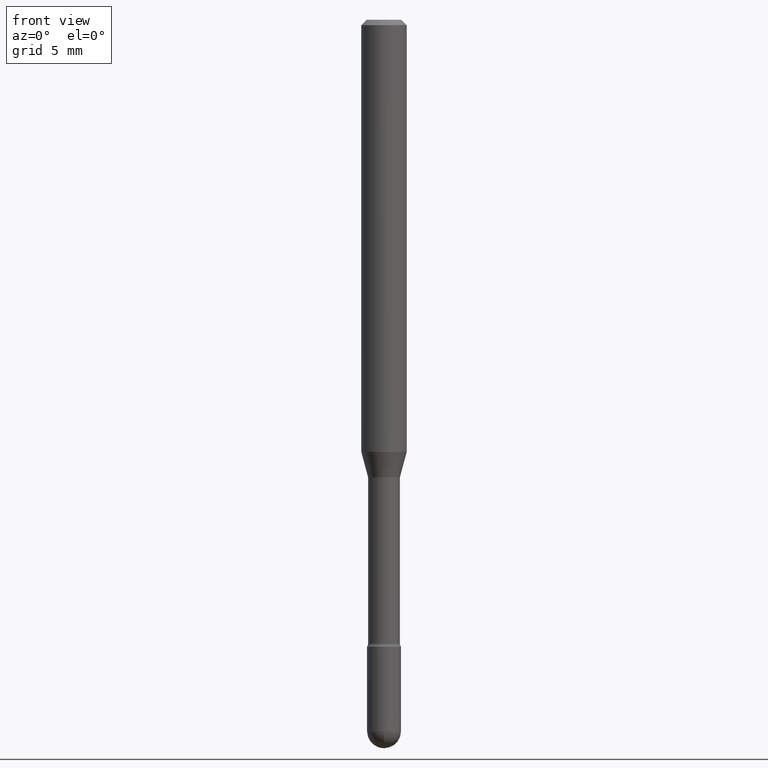
[diagram: clean part render]
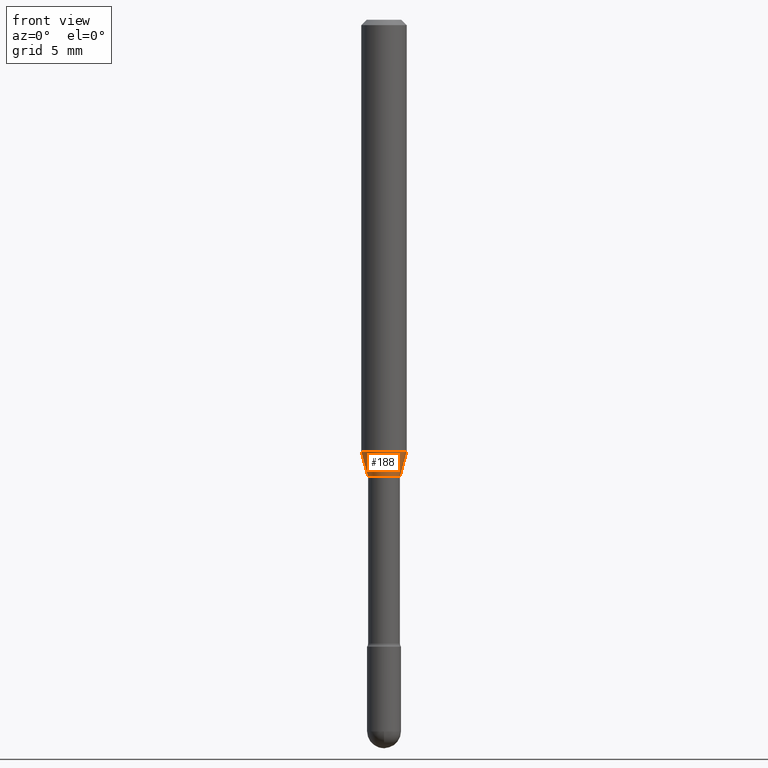
[diagram: same view with one face highlighted and labeled with its STEP entity id]
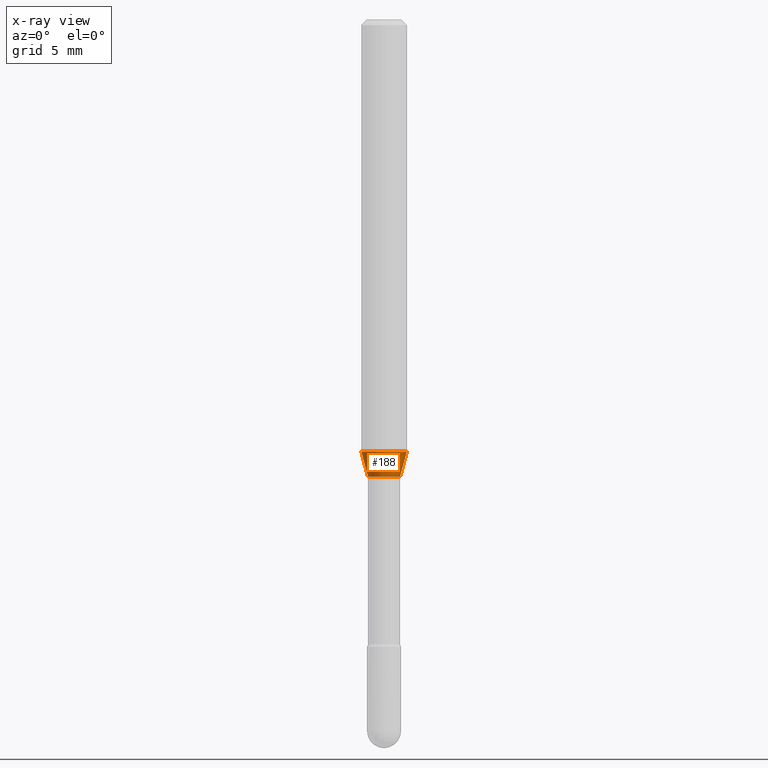
[diagram: x-ray of the same camera — body ghosted, the highlighted face saturated]
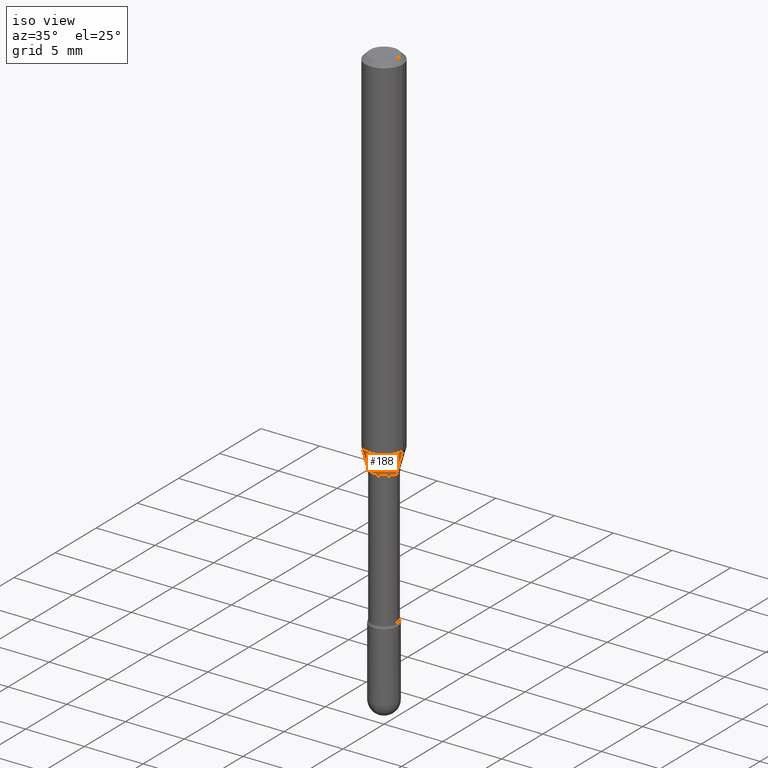
[diagram: same view with one face highlighted and labeled with its STEP entity id]
A machine part, front view. The second image highlights one B-rep face of the part: STEP entity #188.
The next image is the same camera in x-ray: the body ghosted, the highlighted face saturated — about 0% of this face is hidden behind the body in this view.
A second angle (iso view) of the same face is appended — the face is thin or edge-on in the first view.
In plain terms, the highlighted conical surface has half-angle 15 deg.
Its self-contained STEP definition (entity closure, byte-faithful):
#13 = CARTESIAN_POINT ( 'NONE',  ( -0.04421111260566398804, -4.064501718155114829E-15, -1.254092501787273051 ) ) ;
#23 = ORIENTED_EDGE ( 'NONE', *, *, #354, .F. ) ;
#24 = CARTESIAN_POINT ( 'NONE',  ( -0.06250000000000000000, -3.696240099632393448E-15, -1.185837444817705144 ) ) ;
#25 = AXIS2_PLACEMENT_3D ( 'NONE', #125, #209, #302 ) ;
#49 = EDGE_LOOP ( 'NONE', ( #210, #561, #308, #23 ) ) ;
#68 = VECTOR ( 'NONE', #355, 39.37007874015747433 ) ;
#87 = VECTOR ( 'NONE', #310, 39.37007874015747433 ) ;
#99 = LINE ( 'NONE', #525, #87 ) ;
#108 = DIRECTION ( 'NONE',  ( -2.445468806185136597E-29, 3.491481338843145583E-15, 1.000000000000000000 ) ) ;
#120 = CIRCLE ( 'NONE', #25, 0.04421111260566398804 ) ;
#125 = CARTESIAN_POINT ( 'NONE',  ( 3.066844093191453631E-29, -4.378640567173378440E-15, -1.254092501787273051 ) ) ;
#155 = DIRECTION ( 'NONE',  ( 1.000000000000000000, -6.982962677686262766E-15, 0.000000000000000000 ) ) ;
#174 = EDGE_CURVE ( 'NONE', #452, #244, #120, .T. ) ;
#188 = ADVANCED_FACE ( 'NONE', ( #247 ), #381, .T. ) ;
#209 = DIRECTION ( 'NONE',  ( -2.445468806185136597E-29, 3.491481338843145583E-15, 1.000000000000000000 ) ) ;
#210 = ORIENTED_EDGE ( 'NONE', *, *, #536, .F. ) ;
#219 = DIRECTION ( 'NONE',  ( -2.445468806185136597E-29, 3.491481338843145583E-15, 1.000000000000000000 ) ) ;
#244 = VERTEX_POINT ( 'NONE', #251 ) ;
#247 = FACE_OUTER_BOUND ( 'NONE', #49, .T. ) ;
#251 = CARTESIAN_POINT ( 'NONE',  ( 0.04421111260566398804, -4.687365116437714355E-15, -1.254092501787273051 ) ) ;
#258 = CARTESIAN_POINT ( 'NONE',  ( 3.066844093191453631E-29, -4.378640567173378440E-15, -1.254092501787273051 ) ) ;
#302 = DIRECTION ( 'NONE',  ( 1.000000000000000000, -6.982962677686263555E-15, 0.000000000000000000 ) ) ;
#308 = ORIENTED_EDGE ( 'NONE', *, *, #511, .T. ) ;
#310 = DIRECTION ( 'NONE',  ( 0.2588190451025213501, 1.565188264969621968E-15, 0.9659258262890682012 ) ) ;
#341 = AXIS2_PLACEMENT_3D ( 'NONE', #543, #108, #155 ) ;
#354 = EDGE_CURVE ( 'NONE', #398, #368, #356, .T. ) ;
#355 = DIRECTION ( 'NONE',  ( -0.2588190451025213501, 5.211531920934551042E-15, 0.9659258262890682012 ) ) ;
#356 = CIRCLE ( 'NONE', #341, 0.06250000000000000000 ) ;
#368 = VERTEX_POINT ( 'NONE', #504 ) ;
#381 = CONICAL_SURFACE ( 'NONE', #390, 0.04421111260566398804, 0.2617993877991500740 ) ;
#384 = DIRECTION ( 'NONE',  ( 1.000000000000000000, -6.982962677686263555E-15, 0.000000000000000000 ) ) ;
#390 = AXIS2_PLACEMENT_3D ( 'NONE', #258, #219, #384 ) ;
#398 = VERTEX_POINT ( 'NONE', #24 ) ;
#408 = LINE ( 'NONE', #13, #68 ) ;
#452 = VERTEX_POINT ( 'NONE', #494 ) ;
#494 = CARTESIAN_POINT ( 'NONE',  ( -0.04421111260566398804, -3.880370908893754533E-15, -1.254092501787273051 ) ) ;
#504 = CARTESIAN_POINT ( 'NONE',  ( 0.06250000000000000000, -4.576764476837847734E-15, -1.185837444817705144 ) ) ;
#511 = EDGE_CURVE ( 'NONE', #244, #368, #99, .T. ) ;
#525 = CARTESIAN_POINT ( 'NONE',  ( 0.04421111260566398804, -4.687365116437714355E-15, -1.254092501787273051 ) ) ;
#536 = EDGE_CURVE ( 'NONE', #452, #398, #408, .T. ) ;
#543 = CARTESIAN_POINT ( 'NONE',  ( 2.899928480507986581E-29, -4.140329309482456065E-15, -1.185837444817705144 ) ) ;
#561 = ORIENTED_EDGE ( 'NONE', *, *, #174, .T. ) ;